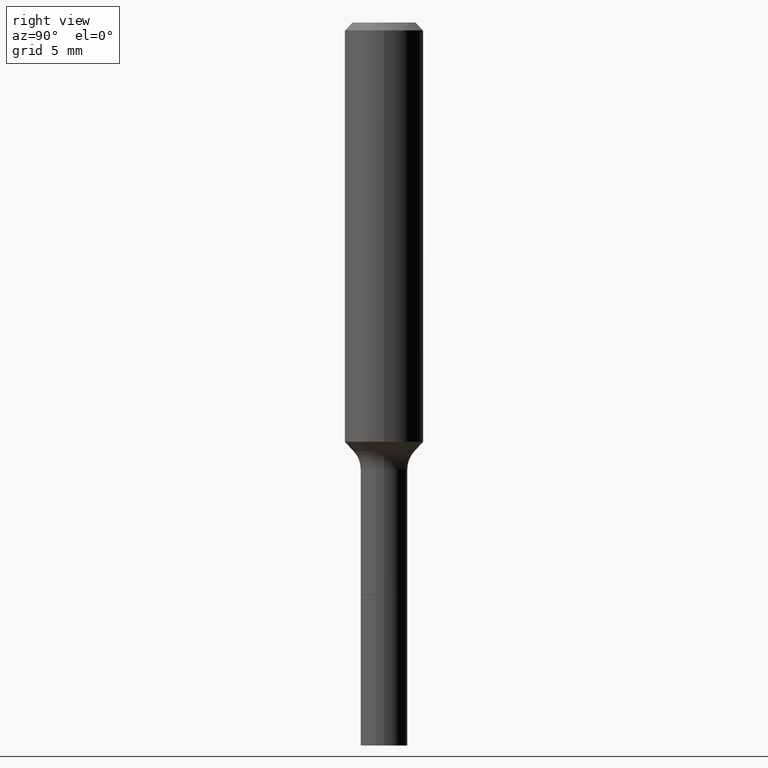
[diagram: clean part render]
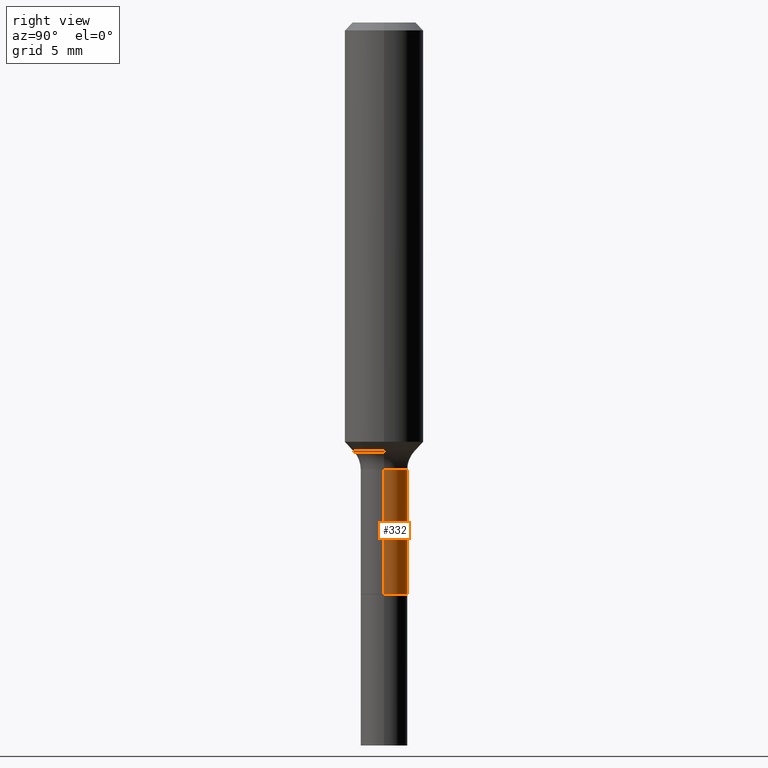
[diagram: same view with one face highlighted and labeled with its STEP entity id]
A machine part, right view. The second image highlights one B-rep face of the part: STEP entity #332.
In plain terms, the highlighted cylindrical surface (edge-blend (fillet) strip) has radius 1.7856 mm, axis along (-0, 0, 1).
Its self-contained STEP definition (entity closure, byte-faithful):
#10 = ORIENTED_EDGE ( 'NONE', *, *, #60, .T. ) ;
#21 = ORIENTED_EDGE ( 'NONE', *, *, #455, .F. ) ;
#48 = VERTEX_POINT ( 'NONE', #371 ) ;
#49 = DIRECTION ( 'NONE',  ( -2.445468806185136877E-29, 3.491481338843145188E-15, 1.000000000000000000 ) ) ;
#55 = CARTESIAN_POINT ( 'NONE',  ( -0.07029999999999998750, 4.995115432393503418E-16, -3.458011368449198169E-30 ) ) ;
#56 = DIRECTION ( 'NONE',  ( -2.445468806185136597E-29, 3.491481338843145583E-15, 1.000000000000000000 ) ) ;
#60 = EDGE_CURVE ( 'NONE', #48, #84, #327, .T. ) ;
#76 = AXIS2_PLACEMENT_3D ( 'NONE', #495, #255, #330 ) ;
#84 = VERTEX_POINT ( 'NONE', #273 ) ;
#88 = CYLINDRICAL_SURFACE ( 'NONE', #109, 0.07029999999999998750 ) ;
#89 = ORIENTED_EDGE ( 'NONE', *, *, #214, .F. ) ;
#109 = AXIS2_PLACEMENT_3D ( 'NONE', #313, #489, #365 ) ;
#127 = FACE_OUTER_BOUND ( 'NONE', #447, .T. ) ;
#156 = VECTOR ( 'NONE', #49, 39.37007874015748143 ) ;
#207 = CARTESIAN_POINT ( 'NONE',  ( 0.07029999999999995974, -5.163900900149009505E-15, -1.338399999999999812 ) ) ;
#214 = EDGE_CURVE ( 'NONE', #48, #290, #466, .T. ) ;
#230 = CARTESIAN_POINT ( 'NONE',  ( 0.07029999999999998750, -4.909022762413444543E-16, 3.427952273384541736E-30 ) ) ;
#255 = DIRECTION ( 'NONE',  ( -2.445468806185136597E-29, 3.491481338843145583E-15, 1.000000000000000000 ) ) ;
#259 = VERTEX_POINT ( 'NONE', #441 ) ;
#273 = CARTESIAN_POINT ( 'NONE',  ( -0.07030000000000000138, -4.825521220697272718E-15, -1.711899999999999755 ) ) ;
#282 = CIRCLE ( 'NONE', #76, 0.07029999999999995974 ) ;
#290 = VERTEX_POINT ( 'NONE', #207 ) ;
#297 = DIRECTION ( 'NONE',  ( 1.000000000000000000, -6.982962677686265133E-15, 0.000000000000000000 ) ) ;
#313 = CARTESIAN_POINT ( 'NONE',  ( 0.000000000000000000, 0.000000000000000000, 0.000000000000000000 ) ) ;
#327 = CIRCLE ( 'NONE', #429, 0.07030000000000000138 ) ;
#330 = DIRECTION ( 'NONE',  ( 1.000000000000000000, -6.982962677686269077E-15, 0.000000000000000000 ) ) ;
#332 = ADVANCED_FACE ( 'NONE', ( #127 ), #88, .T. ) ;
#360 = ORIENTED_EDGE ( 'NONE', *, *, #492, .T. ) ;
#365 = DIRECTION ( 'NONE',  ( 1.000000000000000000, -6.982962677686266711E-15, 4.876176775795935232E-29 ) ) ;
#371 = CARTESIAN_POINT ( 'NONE',  ( 0.07030000000000000138, -6.467969180206924735E-15, -1.711899999999999755 ) ) ;
#377 = LINE ( 'NONE', #55, #467 ) ;
#429 = AXIS2_PLACEMENT_3D ( 'NONE', #457, #56, #297 ) ;
#441 = CARTESIAN_POINT ( 'NONE',  ( -0.07029999999999995974, -4.825521220697272718E-15, -1.338399999999999812 ) ) ;
#447 = EDGE_LOOP ( 'NONE', ( #10, #360, #21, #89 ) ) ;
#453 = DIRECTION ( 'NONE',  ( -2.445468806185136877E-29, 3.491481338843145188E-15, 1.000000000000000000 ) ) ;
#455 = EDGE_CURVE ( 'NONE', #290, #259, #282, .T. ) ;
#457 = CARTESIAN_POINT ( 'NONE',  ( 4.186398049308334724E-29, -5.977066903965580577E-15, -1.711899999999999755 ) ) ;
#466 = LINE ( 'NONE', #230, #156 ) ;
#467 = VECTOR ( 'NONE', #453, 39.37007874015748143 ) ;
#489 = DIRECTION ( 'NONE',  ( -2.445468806185136597E-29, 3.491481338843145583E-15, 1.000000000000000000 ) ) ;
#492 = EDGE_CURVE ( 'NONE', #84, #259, #377, .T. ) ;
#495 = CARTESIAN_POINT ( 'NONE',  ( 3.273015450198186344E-29, -4.672998623907665346E-15, -1.338399999999999812 ) ) ;